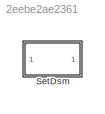
MODEL slx_2eebe2ae2361
KIND library
CONFIG AbsTol = auto
CONFIG EnableMultiTasking = off
CONFIG FixedStep = auto
CONFIG MaxStep = auto
CONFIG MinStep = auto
CONFIG RelTol = 1e-3
CONFIG SampleTimeConstraint = Unconstrained
CONFIG SolverName = VariableStepAuto
CONFIG StartTime = 0.0
CONFIG StopTime = 10.0
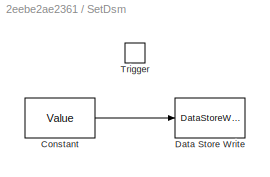
BLOCK [SubSystem] SetDsm
  RTWSystemCode = Reusable function
BLOCK [Constant] SetDsm/Constant
  Value = Value
BLOCK [DataStoreWrite] SetDsm/Data Store Write
  DataStoreName = Freeze
  IndexOptions = Index vector (dialog)
  Indices = 1
  OutputSizes = 1
BLOCK [TriggerPort] SetDsm/Trigger
  FunctionName = TheBigOne
  PortDimensions = 1
  StatesWhenEnabling = held
  TriggerType = function-call
  VariantControl = (inherit)
LINE SetDsm/Constant:1 -> SetDsm/Data Store Write:1
